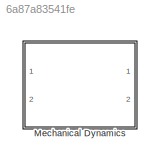
MODEL slx_6a87a83541fe
KIND model
CONFIG AbsTol = auto
CONFIG FixedStep = auto
CONFIG MaxStep = auto
CONFIG MinStep = auto
CONFIG RelTol = 1e-3
CONFIG SampleTimeConstraint = Unconstrained
CONFIG Solver = ode45
CONFIG SolverMode = Auto
CONFIG SolverName = ode45
CONFIG StartTime = 0.0
CONFIG StopTime = 10.0
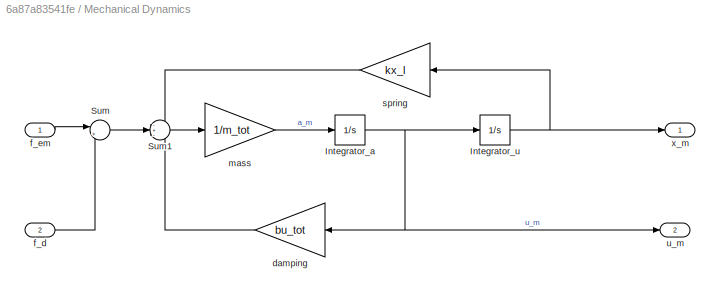
BLOCK [SubSystem] Mechanical Dynamics
  Ports = [2, 2]
  RequestExecContextInheritance = off
BLOCK [Integrator] Mechanical Dynamics/Integrator_a
  Ports = [1, 1]
BLOCK [Integrator] Mechanical Dynamics/Integrator_u
  Ports = [1, 1]
BLOCK [Sum] Mechanical Dynamics/Sum
  IconShape = round
  InputSameDT = off
  Inputs = |+-
  OutDataTypeStr = Inherit: Inherit via internal rule
  Ports = [2, 1]
  SaturateOnIntegerOverflow = off
BLOCK [Sum] Mechanical Dynamics/Sum1
  IconShape = round
  InputSameDT = off
  Inputs = -+-
  OutDataTypeStr = Inherit: Inherit via internal rule
  Ports = [3, 1]
  SaturateOnIntegerOverflow = off
BLOCK [Gain] Mechanical Dynamics/damping
  Gain = bu_tot
  OutDataTypeStr = Inherit: Inherit via internal rule
  ParamDataTypeStr = Inherit: Inherit via internal rule
  SaturateOnIntegerOverflow = off
BLOCK [Inport] Mechanical Dynamics/f_d
  IconDisplay = Port number
  Port = 2
BLOCK [Inport] Mechanical Dynamics/f_em
  IconDisplay = Port number
BLOCK [Gain] Mechanical Dynamics/mass
  Gain = 1/m_tot
  OutDataTypeStr = Inherit: Inherit via internal rule
  ParamDataTypeStr = Inherit: Inherit via internal rule
  SaturateOnIntegerOverflow = off
BLOCK [Gain] Mechanical Dynamics/spring
  Gain = kx_l
  OutDataTypeStr = Inherit: Inherit via internal rule
  ParamDataTypeStr = Inherit: Inherit via internal rule
  SaturateOnIntegerOverflow = off
BLOCK [Outport] Mechanical Dynamics/u_m
  IconDisplay = Port number
  Port = 2
BLOCK [Outport] Mechanical Dynamics/x_m
  IconDisplay = Port number
NET Mechanical Dynamics/Integrator_a:1 -> Mechanical Dynamics/Integrator_u:1, Mechanical Dynamics/damping:1, Mechanical Dynamics/u_m:1
NET Mechanical Dynamics/Integrator_u:1 -> Mechanical Dynamics/spring:1, Mechanical Dynamics/x_m:1
LINE Mechanical Dynamics/Sum1:1 -> Mechanical Dynamics/mass:1
LINE Mechanical Dynamics/Sum:1 -> Mechanical Dynamics/Sum1:2
LINE Mechanical Dynamics/damping:1 -> Mechanical Dynamics/Sum1:3
LINE Mechanical Dynamics/f_d:1 -> Mechanical Dynamics/Sum:2
LINE Mechanical Dynamics/f_em:1 -> Mechanical Dynamics/Sum:1
LINE Mechanical Dynamics/mass:1 -> Mechanical Dynamics/Integrator_a:1
LINE Mechanical Dynamics/spring:1 -> Mechanical Dynamics/Sum1:1
note: NET lines group one-source signal fan-out (src -> all destinations, sorted); 1:1 wires keep LINE
